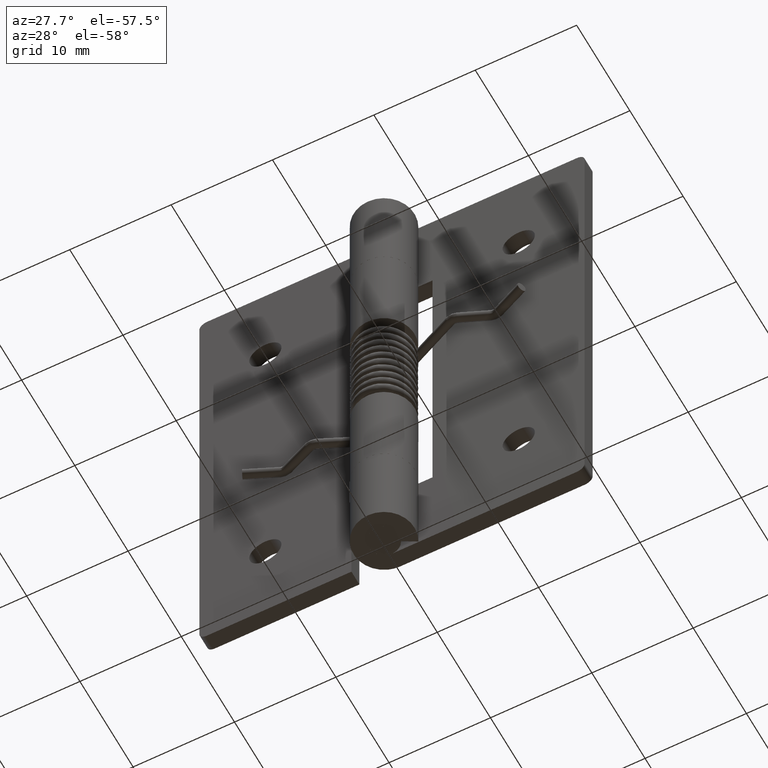
[diagram: clean part render]
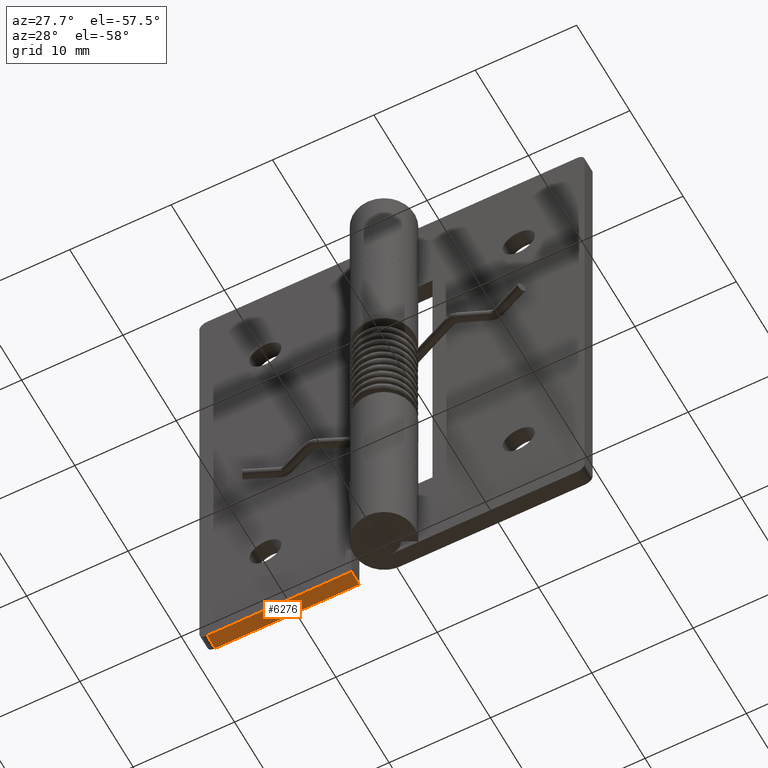
[diagram: same view with one face highlighted and labeled with its STEP entity id]
A machine part, auxiliary view. The second image highlights one B-rep face of the part: STEP entity #6276.
In plain terms, the highlighted face is a freeform B-spline surface patch.
Its self-contained STEP definition (entity closure, byte-faithful):
#5652=CARTESIAN_POINT('',(-18.250000000000000,1.500000000000055,0.0));
#5653=VERTEX_POINT('',#5652);
#5674=CARTESIAN_POINT('',(-18.250000000000000,3.0,0.0));
#5675=VERTEX_POINT('',#5674);
#5689=CARTESIAN_POINT('',(-18.250000000000000,3.0,0.0));
#5690=CARTESIAN_POINT('',(-18.250000000000000,1.500000000000055,0.0));
#5691=QUASI_UNIFORM_CURVE('',1,(#5689,#5690),.UNSPECIFIED.,.F.,.U.);
#5692=EDGE_CURVE('',#5675,#5653,#5691,.T.);
#5986=CARTESIAN_POINT('',(-4.0,1.500000000000000,0.0));
#5987=VERTEX_POINT('',#5986);
#5993=CARTESIAN_POINT('',(-4.0,3.0,0.0));
#5994=VERTEX_POINT('',#5993);
#5995=CARTESIAN_POINT('',(-4.0,3.0,0.0));
#5996=CARTESIAN_POINT('',(-4.0,1.500000000000000,0.0));
#5997=QUASI_UNIFORM_CURVE('',1,(#5995,#5996),.UNSPECIFIED.,.F.,.U.);
#5998=EDGE_CURVE('',#5994,#5987,#5997,.T.);
#6257=CARTESIAN_POINT('',(-18.961787472380738,1.425075002907291,0.0));
#6258=CARTESIAN_POINT('',(-3.288212145404482,1.425075002907291,0.0));
#6259=CARTESIAN_POINT('',(-18.961787472380738,3.074925037325845,0.0));
#6260=CARTESIAN_POINT('',(-3.288212145404482,3.074925037325845,0.0));
#6261=B_SPLINE_SURFACE_WITH_KNOTS('',1,1,((#6257,#6259),(#6258,#6260)),.UNSPECIFIED.,.F.,.F.,.U.,(2,2),(2,2),(0.0,15.673575326976250),(0.041708334948495,0.958291687403247),.UNSPECIFIED.);
#6262=CARTESIAN_POINT('',(-4.0,1.500000000000000,0.0));
#6263=CARTESIAN_POINT('',(-18.250000000000000,1.500000000000055,0.0));
#6264=QUASI_UNIFORM_CURVE('',1,(#6262,#6263),.UNSPECIFIED.,.F.,.U.);
#6265=EDGE_CURVE('',#5987,#5653,#6264,.T.);
#6266=ORIENTED_EDGE('',*,*,#6265,.T.);
#6267=ORIENTED_EDGE('',*,*,#5692,.F.);
#6268=CARTESIAN_POINT('',(-18.250000000000000,3.0,0.0));
#6269=CARTESIAN_POINT('',(-4.0,3.0,0.0));
#6270=QUASI_UNIFORM_CURVE('',1,(#6268,#6269),.UNSPECIFIED.,.F.,.U.);
#6271=EDGE_CURVE('',#5675,#5994,#6270,.T.);
#6272=ORIENTED_EDGE('',*,*,#6271,.T.);
#6273=ORIENTED_EDGE('',*,*,#5998,.T.);
#6274=EDGE_LOOP('',(#6266,#6267,#6272,#6273));
#6275=FACE_OUTER_BOUND('',#6274,.T.);
#6276=ADVANCED_FACE('',(#6275),#6261,.F.);